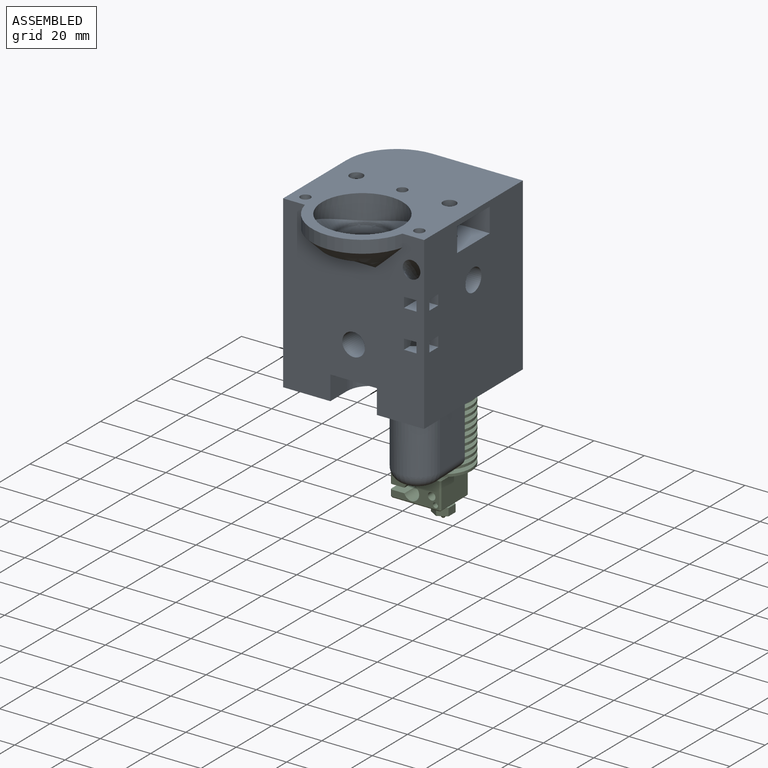
[diagram: assembled view]
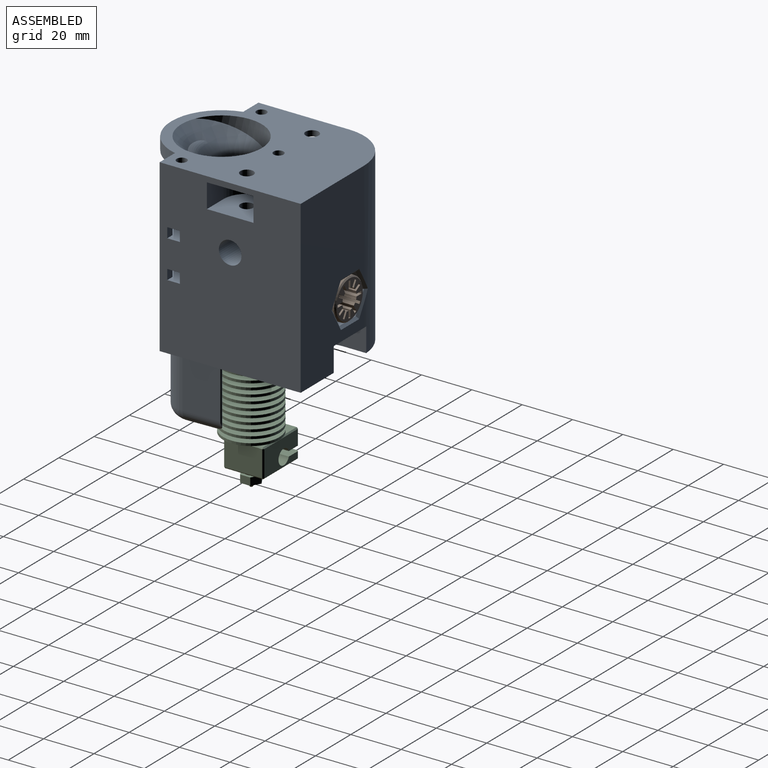
[diagram: assembled view, second angle]
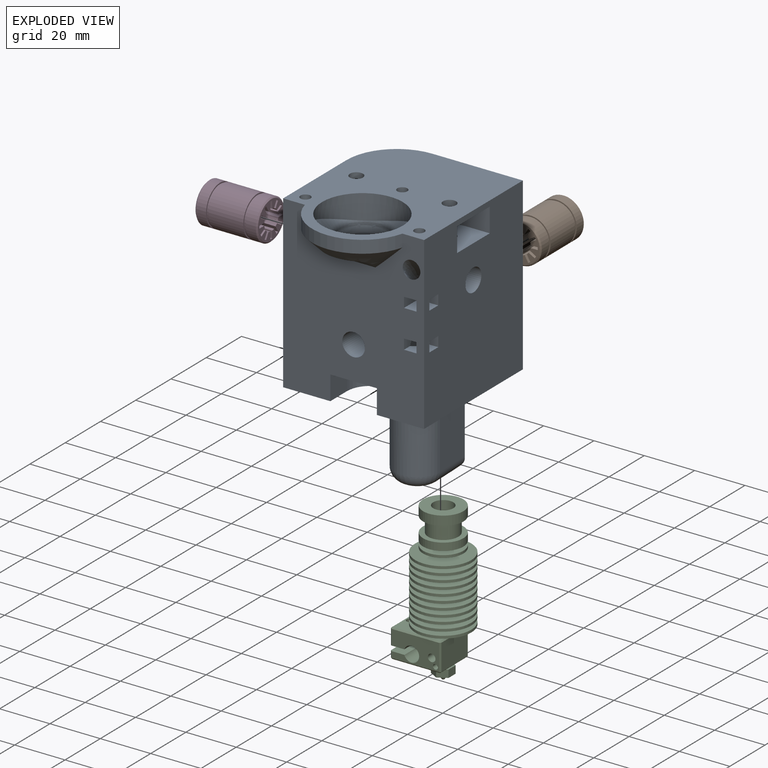
[diagram: exploded view]
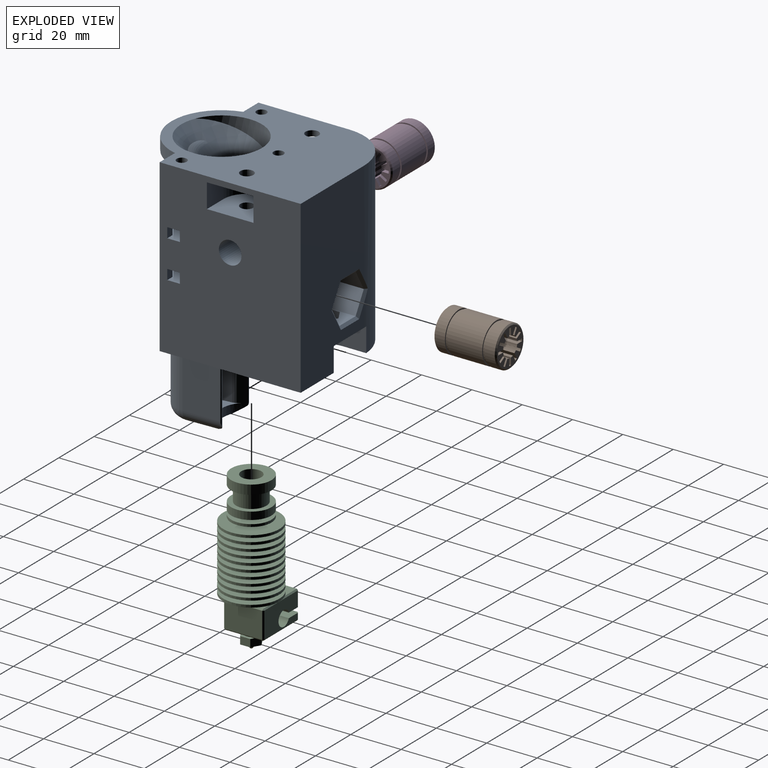
[diagram: exploded view, second angle]
ASSEMBLY  parts=4 mates=3
PART A: 142 faces, bbox 56.8x71.8x92.6 mm
  f0: plane 8x8mm, normal (0,0,1), area 54.1mm2, adj f3,f13,f131,f132,f133,f139,f140
  f1: plane 8.01x8.01mm, normal (0,0,1), area 43.7mm2, adj f3,f4,f13,f134,f135,f137,f138
  f2: plane 8x8mm, normal (0,0,-1), area 54.1mm2, adj f3,f13,f134,f135,f136,f137,f138
  f3: plane 67.8x56mm, normal (0,-1,0), area 3001.5mm2, adj f0,f1,f2,f11,f12,f13,f19,f38
  f4: bspline ~37.4x21.04mm, area 1210.8mm2, adj f1,f88,f98,f99,f100,f101,f102,f134
  f5: plane 0.21x0.16mm, normal (-0.17,0.99,0), area 0mm2, adj f9,f106,f117
  f6: plane 0.21x0.16mm, normal (-0.17,0.99,0), area 0mm2, adj f8,f106,f116
  f7: plane 13.77x10.29mm, normal (0,0,-1), area 97.5mm2, adj f8,f9,f106,f115
  f8: cylinder r=5mm len=13.84mm, axis (0.3,-0.95,0), area 82.5mm2, adj f6,f7,f105,f106,f115,f116
  f9: cylinder r=5mm len=15.18mm, axis (-0.03,1,0), area 103.4mm2, adj f5,f7,f103,f106,f115,f117
  f10: plane 16.59x11.95mm, normal (-0.01,0.09,1), area 91.8mm2, adj f106,f107,f108,f109,f110,f111,f114
  f11: plane 56x56mm, normal (0,0,-1), area 1956.4mm2, adj f3,f12,f13,f18,f26,f27,f28,f38
  f12: plane 67.8x36mm, normal (-1,0,0), area 2004.5mm2, adj f3,f11,f19,f22,f23,f24,f118,f119
  f13: plane 67.8x56mm, normal (1,0,0), area 3515.6mm2, adj f0,f1,f2,f3,f11,f18,f19,f31
  f14: cylinder r=2.6mm len=5.2mm, axis (0,0,1), area 19.6mm2, adj f23,f71
  f15: plane 24x9.24mm, normal (0,0,-1), area 159.1mm2, adj f53,f54,f57,f65,f66,f67,f68,f69
  f16: cylinder r=2.6mm len=5.2mm, axis (0,0,1), area 19.6mm2, adj f29,f64
  f17: plane 24x9.24mm, normal (0,0,1), area 159.1mm2, adj f46,f50,f51,f58,f59,f60,f61,f62
  f18: plane 67.8x36mm, normal (0,1,0), area 2004.5mm2, adj f11,f13,f19,f26,f29,f124,f125,f126
  f19: plane 71x56mm, normal (0,0,1), area 2596.2mm2, adj f3,f12,f13,f18,f25,f35,f72,f74
  f20: cylinder r=9.25mm len=18.5mm, axis (0,0,1), area 279mm2, adj f21,f22,f23,f24
  f21: plane 9.6x9.46mm, normal (0,-1,0), area 90.8mm2, adj f20,f23,f24,f141
  f22: plane 9.6x9.5mm, normal (0,1,0), area 91.2mm2, adj f12,f20,f23,f24
  f23: plane 18.75x18.5mm, normal (0,0,1), area 288.9mm2, adj f12,f14,f20,f21,f22,f141
  f24: plane 18.75x18.5mm, normal (0,0,-1), area 288.9mm2, adj f12,f20,f21,f22,f25,f141
  f25: cylinder r=2.6mm len=5.2mm, axis (0,0,1), area 35.9mm2, adj f19,f24
  f26: plane 9.6x9.5mm, normal (-1,0,0), area 91.2mm2, adj f11,f18,f27,f29
  f27: cylinder r=9.25mm len=18.5mm, axis (0,0,-1), area 279mm2, adj f11,f26,f28,f29
  f28: plane 9.6x9.46mm, normal (1,0,0), area 90.8mm2, adj f11,f27,f29,f141
  f29: plane 18.75x18.5mm, normal (0,0,-1), area 288.9mm2, adj f16,f18,f26,f27,f28,f141
  f30: cylinder r=9.25mm len=18.5mm, axis (0,0,1), area 279mm2, adj f31,f32,f33,f34
  f31: plane 9.6x9.5mm, normal (0,1,0), area 91.2mm2, adj f13,f30,f33,f34
  f32: plane 9.6x9.5mm, normal (0,-1,0), area 91.2mm2, adj f13,f30,f33,f34
  f33: plane 18.75x18.5mm, normal (0,0,1), area 288.9mm2, adj f13,f30,f31,f32,f36
  f34: plane 18.75x18.5mm, normal (0,0,-1), area 288.9mm2, adj f13,f30,f31,f32,f35
  f35: cylinder r=2.6mm len=5.2mm, axis (0,0,1), area 35.9mm2, adj f19,f34
  f36: cylinder r=2.6mm len=5.4mm, axis (0,0,1), area 88.2mm2, adj f33,f37
  f37: plane 5.2x5.2mm, normal (0,0,1), area 21.2mm2, adj f36
  f38: plane 9.6x9.5mm, normal (-1,0,0), area 91.2mm2, adj f3,f11,f40,f41
  f39: plane 9.6x9.5mm, normal (1,0,0), area 91.2mm2, adj f3,f11,f40,f41
  f40: cylinder r=9.25mm len=18.5mm, axis (0,0,-1), area 279mm2, adj f11,f38,f39,f41
  f41: plane 18.75x18.5mm, normal (0,0,-1), area 288.9mm2, adj f3,f38,f39,f40,f42
  f42: cylinder r=2.6mm len=5.4mm, axis (0,0,1), area 88.2mm2, adj f41,f43
  f43: plane 5.2x5.2mm, normal (0,0,-1), area 21.2mm2, adj f42
  f44: cylinder r=4.5mm len=31mm, axis (0,1,0), area 876.5mm2, adj f3,f51
  f45: cylinder r=4.5mm len=31mm, axis (1,0,0), area 876.5mm2, adj f13,f57
  f46: plane 24x8mm, normal (0.87,0,0.5), area 221.7mm2, adj f17,f47,f51,f129
  f47: plane 24x8mm, normal (0.87,0,-0.5), area 221.7mm2, adj f46,f48,f51,f127
  f48: plane 24x9.24mm, normal (0,0,-1), area 221.7mm2, adj f47,f49,f51,f125
  f49: plane 24x8mm, normal (-0.87,0,-0.5), area 221.7mm2, adj f48,f50,f51,f124
  f50: plane 24x8mm, normal (-0.87,0,0.5), area 221.7mm2, adj f17,f49,f51,f126
  f51: plane 18.48x16mm, normal (0,1,0), area 158.1mm2, adj f17,f44,f46,f47,f48,f49,f50
  f52: plane 24x8mm, normal (0,0.87,0.5), area 221.7mm2, adj f53,f56,f57,f122
  f53: plane 24x8mm, normal (0,0.87,-0.5), area 221.7mm2, adj f15,f52,f57,f123
  f54: plane 24x8mm, normal (0,-0.87,-0.5), area 221.7mm2, adj f15,f55,f57,f119
  f55: plane 24x8mm, normal (0,-0.87,0.5), area 221.7mm2, adj f54,f56,f57,f118
  f56: plane 24x9.24mm, normal (0,0,1), area 221.7mm2, adj f52,f55,f57,f120
  f57: plane 18.48x16mm, normal (-1,0,0), area 158.1mm2, adj f15,f45,f52,f53,f54,f55,f56
  f58: plane 4.25x4mm, normal (0.5,0.87,0), area 19.6mm2, adj f17,f59,f63,f64
  f59: plane 4.25x4mm, normal (-0.5,0.87,0), area 19.6mm2, adj f17,f58,f60,f64
  f60: plane 4.91x4mm, normal (-1,0,0), area 19.6mm2, adj f17,f59,f61,f64
  f61: plane 4.25x4mm, normal (-0.5,-0.87,0), area 19.6mm2, adj f17,f60,f62,f64
  f62: plane 4.25x4mm, normal (0.5,-0.87,0), area 19.6mm2, adj f17,f61,f63,f64
  f63: plane 4.91x4mm, normal (1,0,0), area 19.6mm2, adj f17,f58,f62,f64
  f64: plane 9.82x8.5mm, normal (0,0,1), area 41.3mm2, adj f16,f58,f59,f60,f61,f62,f63
  f65: plane 4.25x4mm, normal (0.87,0.5,0), area 19.6mm2, adj f15,f66,f70,f71
  f66: plane 4.25x4mm, normal (0.87,-0.5,0), area 19.6mm2, adj f15,f65,f67,f71
  f67: plane 4.91x4mm, normal (0,-1,0), area 19.6mm2, adj f15,f66,f68,f71
  f68: plane 4.25x4mm, normal (-0.87,-0.5,0), area 19.6mm2, adj f15,f67,f69,f71
  f69: plane 4.25x4mm, normal (-0.87,0.5,0), area 19.6mm2, adj f15,f68,f70,f71
  f70: plane 4.91x4mm, normal (0,1,0), area 19.6mm2, adj f15,f65,f69,f71
  f71: plane 9.82x8.5mm, normal (0,0,-1), area 41.3mm2, adj f14,f65,f66,f67,f68,f69,f70
  f72: cylinder r=2mm len=10mm, axis (0,0,1), area 125.7mm2, adj f19,f73
  f73: plane 4x4mm, normal (0,0,1), area 12.6mm2, adj f72
  f74: cylinder r=2mm len=10mm, axis (0,0,1), area 125.7mm2, adj f19,f75
  f75: plane 4x4mm, normal (0,0,1), area 12.6mm2, adj f74
  f76: cylinder r=2mm len=10mm, axis (0,0,1), area 125.7mm2, adj f19,f77
  f77: plane 4x4mm, normal (0,0,1), area 12.6mm2, adj f76
  f78: cylinder r=20mm len=38.73mm, axis (0,0,1), area 263.6mm2, adj f3,f19,f79
  f79: cone r=20mm half-angle=45deg, axis (0,0,1), area 378.3mm2, adj f3,f78,f80,f81
  f80: plane 18.16x0.75mm, normal (0,-0.71,-0.71), area 18.4mm2, adj f3,f79,f81
  f81: cylinder r=14.56mm len=19.44mm, axis (-1,0,0), area 171.1mm2, adj f79,f80
  f82: cylinder r=16mm len=32mm, axis (0,0,1), area 380mm2, adj f19,f83,f87
  f83: cone r=10mm half-angle=45deg, axis (0,0,1), area 401.5mm2, adj f82,f84,f85,f86
  f84: cone r=11mm half-angle=45deg, axis (0,0,1), area 226.7mm2, adj f19,f83,f85
  f85: torus R=17.01mm, axis (0,0,1), area 54.7mm2, adj f83,f84
  f86: torus R=13mm, axis (0,0,-1), area 107.9mm2, adj f83,f87,f90
  f87: bspline ~13.41x7.84mm, area 16.7mm2, adj f82,f86,f89
  f88: cylinder r=8.5mm len=17mm, axis (0,0,1), area 372.8mm2, adj f4,f91,f92,f99,f100
  f89: bspline ~11.39x7.38mm, area 14.3mm2, adj f87,f90,f92
  f90: torus R=8.02mm, axis (0,0,-1), area 57.3mm2, adj f86,f89,f91
  f91: torus R=13.5mm, axis (0,0,-1), area 150.7mm2, adj f88,f90,f92
  f92: bspline ~10.41x6.39mm, area 36.5mm2, adj f88,f89,f91
  f93: plane 9x9mm, normal (0,0,-1), area 17.4mm2, adj f3,f13,f104
  f94: cylinder r=8mm len=16.7mm, axis (0,0,-1), area 839.4mm2, adj f11,f95
  f95: plane 16x16mm, normal (0,0,-1), area 122.5mm2, adj f94,f96
  f96: cylinder r=5mm len=10mm, axis (0,0,-1), area 314.2mm2, adj f95,f97
  f97: bspline ~33.02x32.6mm, area 805mm2, adj f3,f96,f130,f132,f133
  f98: cylinder r=6mm len=45mm, axis (0,0,-1), area 1281.6mm2, adj f4,f11,f101,f102,f110,f111,f114
  f99: bspline ~17x9.73mm, area 35.9mm2, adj f4,f88
  f100: bspline ~16.84x8.35mm, area 25.9mm2, adj f4,f88
  f101: bspline ~12.04x7.61mm, area 24.6mm2, adj f4,f98
  f102: bspline ~11.89x5.54mm, area 19.2mm2, adj f4,f98
  f103: plane 19x14.57mm, normal (1,0.03,0), area 277mm2, adj f9,f11,f104,f112
  f104: cylinder r=9mm len=19mm, axis (0,0,1), area 537.2mm2, adj f11,f93,f103,f105,f115
  f105: plane 19x11.04mm, normal (-0.95,-0.3,0), area 219.8mm2, adj f8,f11,f104,f113
  f106: cylinder r=11.4mm len=24mm, axis (0,0,1), area 160.2mm2, adj f5,f6,f7,f8,f9,f10,f11,f108
  f107: plane 20.6x5.24mm, normal (-1,-0.03,0), area 106.9mm2, adj f10,f11,f108,f110
  f108: cylinder r=5mm len=20.84mm, axis (0,0,1), area 63.7mm2, adj f10,f11,f106,f107
  f109: cylinder r=5mm len=20.85mm, axis (0,0,1), area 62.2mm2, adj f10,f11,f106,f111
  f110: cylinder r=3201.38mm len=20.15mm, axis (0,0,-1), area 87.5mm2, adj f10,f11,f98,f107,f114
  f111: cylinder r=3201.38mm len=20.62mm, axis (0,0,1), area 194.1mm2, adj f10,f11,f98,f109,f114
  f112: cylinder r=0.5mm len=21.79mm, axis (0,0,1), area 27.8mm2, adj f11,f103,f106,f117
  f113: cylinder r=0.5mm len=21.79mm, axis (0,0,1), area 27.8mm2, adj f11,f105,f106,f116
  f114: plane 12.45x8.87mm, normal (0,0,1), area 79.4mm2, adj f10,f98,f110,f111
  f115: torus R=4mm, axis (0,0,-1), area 180.7mm2, adj f7,f8,f9,f104
  f116: bspline ~2.93x0.9mm, area 0.1mm2, adj f6,f8,f113
  f117: bspline ~2.94x0.98mm, area 0.1mm2, adj f5,f9,f112
  f118: plane 9.12x5.75mm, normal (-0.71,-0.61,0.35), area 13.6mm2, adj f12,f55,f119,f120,f141
  f119: plane 9.12x5.75mm, normal (-0.71,-0.61,-0.35), area 13.6mm2, adj f12,f54,f118,f121,f141
  f120: plane 10.39x1mm, normal (-0.71,0,0.71), area 13.9mm2, adj f12,f56,f118,f122
  f121: plane 10.39x1mm, normal (-0.71,0,-0.71), area 13.9mm2, adj f12,f15,f119,f123
  f122: plane 9x5.77mm, normal (-0.71,0.61,0.35), area 13.9mm2, adj f12,f52,f120,f123
  f123: plane 9x5.77mm, normal (-0.71,0.61,-0.35), area 13.9mm2, adj f12,f53,f121,f122
  f124: plane 9x5.77mm, normal (-0.61,0.71,-0.35), area 13.9mm2, adj f18,f49,f125,f126
  f125: plane 10.39x1mm, normal (0,0.71,-0.71), area 13.9mm2, adj f18,f48,f124,f127
  f126: plane 9x5.77mm, normal (-0.61,0.71,0.35), area 13.9mm2, adj f18,f50,f124,f128
  f127: plane 9.12x5.75mm, normal (0.61,0.71,-0.35), area 13.6mm2, adj f18,f47,f125,f129,f141
  f128: plane 10.39x1mm, normal (0,0.71,0.71), area 13.9mm2, adj f17,f18,f126,f129
  f129: plane 9.12x5.75mm, normal (0.61,0.71,0.35), area 13.6mm2, adj f18,f46,f127,f128,f141
  f130: plane 8.77x8.77mm, normal (0,0,-1), area 52.2mm2, adj f3,f13,f97,f131,f132,f133,f139,f140
  f131: plane 6x4mm, normal (1,0,0), area 24mm2, adj f0,f3,f130,f133
  f132: plane 6.11x4.11mm, normal (0,-1,0), area 23.4mm2, adj f0,f13,f97,f130,f133
  f133: cylinder r=2mm len=4mm, axis (0,0,-1), area 11.7mm2, adj f0,f97,f130,f131,f132
  f134: plane 6.59x4.58mm, normal (1,0,0), area 19.2mm2, adj f1,f2,f3,f4,f136
  f135: plane 6x4mm, normal (0,-1,0), area 22.6mm2, adj f1,f2,f4,f13,f136
  f136: cylinder r=2mm len=2.32mm, axis (0,0,-1), area 3.9mm2, adj f2,f4,f134,f135
  f137: plane 4x3mm, normal (0,1,0), area 12mm2, adj f1,f2,f13,f138
  f138: plane 4x3mm, normal (-1,0,0), area 12mm2, adj f1,f2,f3,f137
  f139: plane 4x3mm, normal (-1,0,0), area 12mm2, adj f0,f3,f130,f140
  f140: plane 4x3mm, normal (0,1,0), area 12mm2, adj f0,f13,f130,f139
  f141: cylinder r=20mm len=67.8mm, axis (0,0,-1), area 2087.3mm2, adj f11,f12,f18,f19,f21,f23,f24,f28
PART B: 61 faces, bbox 16.1x24.8x16.1 mm
  f0: plane 15.08x15.08mm, normal (0,1,0), area 95.2mm2, adj f12,f13,f14,f15,f16,f17,f18,f19
  f1: cylinder r=8.04mm len=16.08mm, axis (0,1,0), area 202mm2, adj f2,f12
  f2: plane 16.08x16.08mm, normal (0,-1,0), area 24.5mm2, adj f1,f3
  f3: cylinder r=7.54mm len=15.08mm, axis (0,1,0), area 47.4mm2, adj f2,f4
  f4: plane 16.08x16.08mm, normal (0,1,0), area 24.5mm2, adj f3,f5
  f5: cylinder r=8.04mm len=16.08mm, axis (0,1,0), area 697mm2, adj f4,f6
  f6: plane 16.08x16.08mm, normal (0,-1,0), area 24.5mm2, adj f5,f7
  f7: cylinder r=7.54mm len=15.08mm, axis (0,1,0), area 47.4mm2, adj f6,f8
  f8: plane 16.08x16.08mm, normal (0,1,0), area 24.5mm2, adj f7,f9
  f9: cylinder r=8.04mm len=16.08mm, axis (0,1,0), area 202mm2, adj f8,f11
  f10: plane 15.08x15.08mm, normal (0,-1,0), area 95.2mm2, adj f11,f13,f14,f15,f16,f17,f18,f19
  f11: cone r=8.04mm half-angle=45deg, axis (0,1,0), area 34.6mm2, adj f9,f10
  f12: cone r=7.54mm half-angle=45deg, axis (0,-1,0), area 34.6mm2, adj f0,f1
  f13: cylinder r=6.75mm len=24.8mm, axis (0,1,0), area 24.8mm2, adj f0,f10,f14,f60
  f14: plane 24.8x2.76mm, normal (-1,0,0), area 68.5mm2, adj f0,f10,f13,f15
  f15: cylinder r=4mm len=24.8mm, axis (0,1,0), area 27.1mm2, adj f0,f10,f14,f16
  f16: plane 24.8x2.39mm, normal (0.87,0,0.5), area 68.5mm2, adj f0,f10,f15,f17
  f17: cylinder r=6.75mm len=24.8mm, axis (0,1,0), area 24.8mm2, adj f0,f10,f16,f18
  f18: plane 24.8x2.39mm, normal (-0.87,0,-0.5), area 68.5mm2, adj f0,f10,f17,f19
  f19: cylinder r=4mm len=24.8mm, axis (0,1,0), area 27.1mm2, adj f0,f10,f18,f20
  f20: plane 24.8x2.39mm, normal (0.5,0,0.87), area 68.5mm2, adj f0,f10,f19,f21
  f21: cylinder r=6.75mm len=24.8mm, axis (0,1,0), area 24.8mm2, adj f0,f10,f20,f22
  f22: plane 24.8x2.39mm, normal (-0.5,0,-0.87), area 68.5mm2, adj f0,f10,f21,f23
  f23: cylinder r=4mm len=24.8mm, axis (0,1,0), area 27.1mm2, adj f0,f10,f22,f24
  f24: plane 24.8x2.76mm, normal (0,0,1), area 68.5mm2, adj f0,f10,f23,f25
  f25: cylinder r=6.75mm len=24.8mm, axis (0,1,0), area 24.8mm2, adj f0,f10,f24,f26
  f26: plane 24.8x2.76mm, normal (0,0,-1), area 68.5mm2, adj f0,f10,f25,f27
  f27: cylinder r=4mm len=24.8mm, axis (0,1,0), area 27.1mm2, adj f0,f10,f26,f28
  f28: plane 24.8x2.39mm, normal (-0.5,0,0.87), area 68.5mm2, adj f0,f10,f27,f29
  f29: cylinder r=6.75mm len=24.8mm, axis (0,1,0), area 24.8mm2, adj f0,f10,f28,f30
  f30: plane 24.8x2.39mm, normal (0.5,0,-0.87), area 68.5mm2, adj f0,f10,f29,f31
  f31: cylinder r=4mm len=24.8mm, axis (0,1,0), area 27.1mm2, adj f0,f10,f30,f32
  f32: plane 24.8x2.39mm, normal (-0.87,0,0.5), area 68.5mm2, adj f0,f10,f31,f33
  f33: cylinder r=6.75mm len=24.8mm, axis (0,1,0), area 24.8mm2, adj f0,f10,f32,f34
  f34: plane 24.8x2.39mm, normal (0.87,0,-0.5), area 68.5mm2, adj f0,f10,f33,f35
  f35: cylinder r=4mm len=24.8mm, axis (0,1,0), area 27.1mm2, adj f0,f10,f34,f36
  f36: plane 24.8x2.76mm, normal (-1,0,0), area 68.5mm2, adj f0,f10,f35,f37
  f37: cylinder r=6.75mm len=24.8mm, axis (0,1,0), area 24.8mm2, adj f0,f10,f36,f38
  f38: plane 24.8x2.76mm, normal (1,0,0), area 68.5mm2, adj f0,f10,f37,f39
  f39: cylinder r=4mm len=24.8mm, axis (0,1,0), area 27.1mm2, adj f0,f10,f38,f40
  f40: plane 24.8x2.39mm, normal (-0.87,0,-0.5), area 68.5mm2, adj f0,f10,f39,f41
  f41: cylinder r=6.75mm len=24.8mm, axis (0,1,0), area 24.8mm2, adj f0,f10,f40,f42
  f42: plane 24.8x2.39mm, normal (0.87,0,0.5), area 68.5mm2, adj f0,f10,f41,f43
  f43: cylinder r=4mm len=24.8mm, axis (0,1,0), area 27.1mm2, adj f0,f10,f42,f44
  f44: plane 24.8x2.39mm, normal (-0.5,0,-0.87), area 68.5mm2, adj f0,f10,f43,f45
  f45: cylinder r=6.75mm len=24.8mm, axis (0,1,0), area 24.8mm2, adj f0,f10,f44,f46
  f46: plane 24.8x2.39mm, normal (0.5,0,0.87), area 68.5mm2, adj f0,f10,f45,f47
  f47: cylinder r=4mm len=24.8mm, axis (0,1,0), area 27.1mm2, adj f0,f10,f46,f48
  f48: plane 24.8x2.76mm, normal (0,0,-1), area 68.5mm2, adj f0,f10,f47,f49
  f49: cylinder r=6.75mm len=24.8mm, axis (0,1,0), area 24.8mm2, adj f0,f10,f48,f50
  f50: plane 24.8x2.76mm, normal (0,0,1), area 68.5mm2, adj f0,f10,f49,f51
  f51: cylinder r=4mm len=24.8mm, axis (0,1,0), area 27.1mm2, adj f0,f10,f50,f52
  f52: plane 24.8x2.39mm, normal (0.5,0,-0.87), area 68.5mm2, adj f0,f10,f51,f53
  f53: cylinder r=6.75mm len=24.8mm, axis (0,1,0), area 24.8mm2, adj f0,f10,f52,f54
  f54: plane 24.8x2.39mm, normal (-0.5,0,0.87), area 68.5mm2, adj f0,f10,f53,f55
  f55: cylinder r=4mm len=24.8mm, axis (0,1,0), area 27.1mm2, adj f0,f10,f54,f56
  f56: plane 24.8x2.39mm, normal (0.87,0,-0.5), area 68.5mm2, adj f0,f10,f55,f57
  f57: cylinder r=6.75mm len=24.8mm, axis (0,1,0), area 24.8mm2, adj f0,f10,f56,f58
  f58: plane 24.8x2.39mm, normal (-0.87,0,0.5), area 68.5mm2, adj f0,f10,f57,f59
  f59: cylinder r=4mm len=24.8mm, axis (0,1,0), area 27.1mm2, adj f0,f10,f58,f60
  f60: plane 24.8x2.76mm, normal (1,0,0), area 68.5mm2, adj f0,f10,f13,f59
PART C: 111 faces, bbox 26.7x62.3x22.3 mm
  f0: plane 0.5x0.5mm, normal (-0.58,0.58,-0.58), area 0.2mm2, adj f18,f20,f21
  f1: plane 0.5x0.5mm, normal (0.58,0.58,-0.58), area 0.2mm2, adj f4,f17,f20
  f2: plane 0.5x0.5mm, normal (-0.58,0.58,0.58), area 0.2mm2, adj f6,f18,f19
  f3: plane 0.5x0.5mm, normal (0.58,-0.58,-0.58), area 0.2mm2, adj f4,f9,f16
  f4: plane 10.5x0.5mm, normal (0.71,0,-0.71), area 7.4mm2, adj f1,f3,f27,f51
  f5: plane 0.5x0.5mm, normal (0.58,0.58,0.58), area 0.2mm2, adj f6,f11,f17
  f6: plane 19x0.5mm, normal (0,0.71,0.71), area 13.4mm2, adj f2,f5,f22,f25
  f7: plane 0.5x0.5mm, normal (-0.58,-0.58,-0.58), area 0.2mm2, adj f8,f9,f14
  f8: plane 2.5x0.5mm, normal (-0.71,0,-0.71), area 1.8mm2, adj f7,f50,f51,f52
  f9: plane 19x0.5mm, normal (0,-0.71,-0.71), area 13.4mm2, adj f3,f7,f26,f51
  f10: plane 0.5x0.5mm, normal (0.58,-0.58,0.58), area 0.2mm2, adj f11,f15,f16
  f11: plane 10.5x0.5mm, normal (0.71,0,0.71), area 7.4mm2, adj f5,f10,f22,f27
  f12: plane 0.5x0.5mm, normal (-0.58,-0.58,0.58), area 0.2mm2, adj f13,f14,f15
  f13: plane 2.5x0.5mm, normal (-0.71,0,0.71), area 1.8mm2, adj f12,f22,f50,f52
  f14: plane 15x0.5mm, normal (-0.71,-0.71,0), area 10.6mm2, adj f7,f12,f26,f52
  f15: plane 19x0.5mm, normal (0,-0.71,0.71), area 13.4mm2, adj f10,f12,f22,f26
  f16: plane 15x0.5mm, normal (0.71,-0.71,0), area 10.6mm2, adj f3,f10,f26,f27
  f17: plane 15x0.5mm, normal (0.71,0.71,0), area 10.6mm2, adj f1,f5,f25,f27
  f18: plane 15x0.5mm, normal (-0.71,0.71,0), area 10.6mm2, adj f0,f2,f23,f25
  f19: plane 6x0.5mm, normal (-0.71,0,0.71), area 4.2mm2, adj f2,f22,f23,f24
  f20: plane 19x0.5mm, normal (0,0.71,-0.71), area 13.4mm2, adj f0,f1,f25,f51
  f21: plane 6x0.5mm, normal (-0.71,0,-0.71), area 4.2mm2, adj f0,f23,f24,f51
  f22: plane 19x10.5mm, normal (0,0,1), area 150.5mm2, adj f6,f11,f13,f15,f19,f24,f43,f47
  f23: plane 15x6mm, normal (-1,0,0), area 90mm2, adj f18,f19,f21,f24
  f24: plane 16x5.65mm, normal (0,-1,0), area 83mm2, adj f19,f21,f22,f23,f42,f49,f51
  f25: plane 19x15mm, normal (0,1,0), area 271.8mm2, adj f6,f17,f18,f20,f42,f53
  f26: plane 19x15mm, normal (0,-1,0), area 258.3mm2, adj f9,f14,f15,f16,f40,f41
  f27: plane 15x10.5mm, normal (1,0,0), area 157.5mm2, adj f4,f11,f16,f17
  f28: cylinder r=0.2mm len=3mm, axis (0,1,0), area 3.8mm2, adj f29,f30
  f29: plane 0.4x0.4mm, normal (0,-1,0), area 0.1mm2, adj f28
  f30: plane 1x1mm, normal (0,-1,0), area 0.7mm2, adj f28,f31
  f31: cone r=1.9mm half-angle=35deg, axis (0,1,0), area 18.4mm2, adj f30,f39
  f32: plane 8.08x7mm, normal (0,1,0), area 22.8mm2, adj f33,f34,f35,f36,f37,f38,f40
  f33: plane 3.5x3mm, normal (-0.5,0,0.87), area 12.1mm2, adj f32,f34,f38,f39
  f34: plane 3.5x3mm, normal (0.5,0,0.87), area 12.1mm2, adj f32,f33,f35,f39
  f35: plane 4.04x3mm, normal (1,0,0), area 12.1mm2, adj f32,f34,f36,f39
  f36: plane 3.5x3mm, normal (0.5,0,-0.87), area 12.1mm2, adj f32,f35,f37,f39
  f37: plane 3.5x3mm, normal (-0.5,0,-0.87), area 12.1mm2, adj f32,f36,f38,f39
  f38: plane 4.04x3mm, normal (-1,0,0), area 12.1mm2, adj f32,f33,f37,f39
  f39: plane 8.08x7mm, normal (0,-1,0), area 31.1mm2, adj f31,f33,f34,f35,f36,f37,f38
  f40: cylinder r=2.5mm len=5mm, axis (0,-1,0), area 15.7mm2, adj f26,f32
  f41: cylinder r=1.5mm len=3mm, axis (0,-1,0), area 28.3mm2, adj f26,f50
  f42: cylinder r=1.5mm len=6.5mm, axis (0,-1,0), area 61.3mm2, adj f24,f25
  f43: cylinder r=1mm len=2mm, axis (0,0,-1), area 12.6mm2, adj f22,f44
  f44: plane 2x2mm, normal (0,0,1), area 1.3mm2, adj f43,f45
  f45: cylinder r=0.78mm len=2.45mm, axis (0,0,-1), area 11.9mm2, adj f44,f46
  f46: plane 1.55x1.55mm, normal (0,0,1), area 1.9mm2, adj f45
  f47: cylinder r=1.5mm len=3.45mm, axis (0,0,-1), area 32.5mm2, adj f22,f48
  f48: plane 3x3mm, normal (0,0,1), area 7.1mm2, adj f47
  f49: cylinder r=3.02mm len=16mm, axis (0,0,-1), area 271.5mm2, adj f22,f24,f50,f51
  f50: plane 16x5.65mm, normal (0,1,0), area 83mm2, adj f8,f13,f22,f41,f49,f51,f52
  f51: plane 19x10.5mm, normal (0,0,-1), area 160.7mm2, adj f4,f8,f9,f20,f21,f24,f49,f50
  f52: plane 15x2.5mm, normal (-1,0,0), area 37.5mm2, adj f8,f13,f14,f50
  f53: cylinder r=1.4mm len=2.8mm, axis (0,-1,0), area 18.5mm2, adj f25,f110
  f54: cylinder r=4mm len=8mm, axis (0,-1,0), area 163.4mm2, adj f55,f56
  f55: plane 8x8mm, normal (0,1,0), area 50.3mm2, adj f54
  f56: plane 16x16mm, normal (0,1,0), area 150.8mm2, adj f54,f57
  f57: cylinder r=8mm len=16mm, axis (0,-1,0), area 186mm2, adj f56,f58
  f58: plane 16x16mm, normal (0,-1,0), area 88mm2, adj f57,f59
  f59: cylinder r=6mm len=12mm, axis (0,-1,0), area 226.2mm2, adj f58,f60
  f60: plane 16x16mm, normal (0,1,0), area 88mm2, adj f59,f61
  f61: cylinder r=8mm len=16mm, axis (0,-1,0), area 150.8mm2, adj f60,f62
  f62: plane 16x16mm, normal (0,-1,0), area 137.4mm2, adj f61,f63
  f63: cylinder r=4.5mm len=9mm, axis (0,-1,0), area 42.4mm2, adj f62,f64
  f64: plane 16x16mm, normal (0,1,0), area 137.4mm2, adj f63,f65
  f65: cylinder r=8mm len=16mm, axis (0,-1,0), area 50.3mm2, adj f64,f66
  f66: plane 16x16mm, normal (0,-1,0), area 137.4mm2, adj f65,f67
  f67: cylinder r=4.5mm len=9mm, axis (0,-1,0), area 42.4mm2, adj f66,f68
  f68: plane 22.3x22.3mm, normal (0,1,0), area 327mm2, adj f67,f69
  f69: cylinder r=11.15mm len=22.3mm, axis (0,-1,0), area 70.1mm2, adj f68,f70
  f70: plane 22.3x22.3mm, normal (0,-1,0), area 319.7mm2, adj f69,f71
  f71: cylinder r=4.75mm len=9.5mm, axis (0,-1,0), area 44.8mm2, adj f70,f72
  f72: plane 22.3x22.3mm, normal (0,1,0), area 319.7mm2, adj f71,f73
  f73: cylinder r=11.15mm len=22.3mm, axis (0,-1,0), area 70.1mm2, adj f72,f74
  f74: plane 22.3x22.3mm, normal (0,-1,0), area 312mm2, adj f73,f75
  f75: cylinder r=5mm len=10mm, axis (0,-1,0), area 47.1mm2, adj f74,f76
  f76: plane 22.3x22.3mm, normal (0,1,0), area 312mm2, adj f75,f77
  f77: cylinder r=11.15mm len=22.3mm, axis (0,-1,0), area 70.1mm2, adj f76,f78
  f78: plane 22.3x22.3mm, normal (0,-1,0), area 304mm2, adj f77,f79
  f79: cylinder r=5.25mm len=10.5mm, axis (0,-1,0), area 49.5mm2, adj f78,f80
  f80: plane 22.3x22.3mm, normal (0,1,0), area 304mm2, adj f79,f81
  f81: cylinder r=11.15mm len=22.3mm, axis (0,-1,0), area 70.1mm2, adj f80,f82
  f82: plane 22.3x22.3mm, normal (0,-1,0), area 295.5mm2, adj f81,f83
  f83: cylinder r=5.5mm len=11mm, axis (0,-1,0), area 51.8mm2, adj f82,f84
  f84: plane 22.3x22.3mm, normal (0,1,0), area 295.5mm2, adj f83,f85
  f85: cylinder r=11.15mm len=22.3mm, axis (0,-1,0), area 70.1mm2, adj f84,f86
  f86: plane 22.3x22.3mm, normal (0,-1,0), area 286.7mm2, adj f85,f87
  f87: cylinder r=5.75mm len=11.5mm, axis (0,-1,0), area 54.2mm2, adj f86,f88
  f88: plane 22.3x22.3mm, normal (0,1,0), area 286.7mm2, adj f87,f89
  f89: cylinder r=11.15mm len=22.3mm, axis (0,-1,0), area 70.1mm2, adj f88,f90
  f90: plane 22.3x22.3mm, normal (0,-1,0), area 277.5mm2, adj f89,f91
  f91: cylinder r=6mm len=12mm, axis (0,-1,0), area 56.5mm2, adj f90,f92
  f92: plane 22.3x22.3mm, normal (0,1,0), area 277.5mm2, adj f91,f93
  f93: cylinder r=11.15mm len=22.3mm, axis (0,-1,0), area 70.1mm2, adj f92,f94
  f94: plane 22.3x22.3mm, normal (0,-1,0), area 267.9mm2, adj f93,f95
  f95: cylinder r=6.25mm len=12.5mm, axis (0,-1,0), area 58.9mm2, adj f94,f96
  f96: plane 22.3x22.3mm, normal (0,1,0), area 267.9mm2, adj f95,f97
  f97: cylinder r=11.15mm len=22.3mm, axis (0,-1,0), area 70.1mm2, adj f96,f98
  f98: plane 22.3x22.3mm, normal (0,-1,0), area 257.8mm2, adj f97,f99
  f99: cylinder r=6.5mm len=13mm, axis (0,-1,0), area 61.3mm2, adj f98,f100
  f100: plane 22.3x22.3mm, normal (0,1,0), area 257.8mm2, adj f99,f101
  f101: cylinder r=11.15mm len=22.3mm, axis (0,-1,0), area 70.1mm2, adj f100,f102
  f102: plane 22.3x22.3mm, normal (0,-1,0), area 247.4mm2, adj f101,f103
  f103: cylinder r=6.75mm len=13.5mm, axis (0,-1,0), area 63.6mm2, adj f102,f104
  f104: plane 22.3x22.3mm, normal (0,1,0), area 247.4mm2, adj f103,f105
  f105: cylinder r=11.15mm len=22.3mm, axis (0,-1,0), area 70.1mm2, adj f104,f106
  f106: plane 22.3x22.3mm, normal (0,-1,0), area 236.6mm2, adj f105,f107
  f107: cylinder r=7mm len=14mm, axis (0,-1,0), area 66mm2, adj f106,f108
  f108: plane 22.3x22.3mm, normal (0,1,0), area 236.6mm2, adj f107,f109
  f109: cylinder r=11.15mm len=22.3mm, axis (0,-1,0), area 70.1mm2, adj f108,f110
  f110: plane 22.3x22.3mm, normal (0,-1,0), area 384.4mm2, adj f53,f109
PART D: same geometry as B
PLACE A t=(-16.32,45.89,-19.79)mm
PLACE B rot(axis=(1,0,0),180deg) t=(11.68,33.29,5.21)mm
PLACE C rot(axis=(1,0,0),90deg) t=(27.68,17.89,-22.24)mm
PLACE D rot(axis=(-0.58,-0.58,-0.58),120deg) t=(-3.72,17.89,25.21)mm
MATE fastened D.f12 <-> A.f45  axis (1,0,0) through (8.68,17.89,25.21)mm
MATE fastened B.f12 <-> A.f44  axis (0,-1,0) through (11.68,20.89,5.21)mm
MATE fastened C.f28 <-> A.f94  axis (0,0,1) through (27.68,17.89,-0.89)mm
